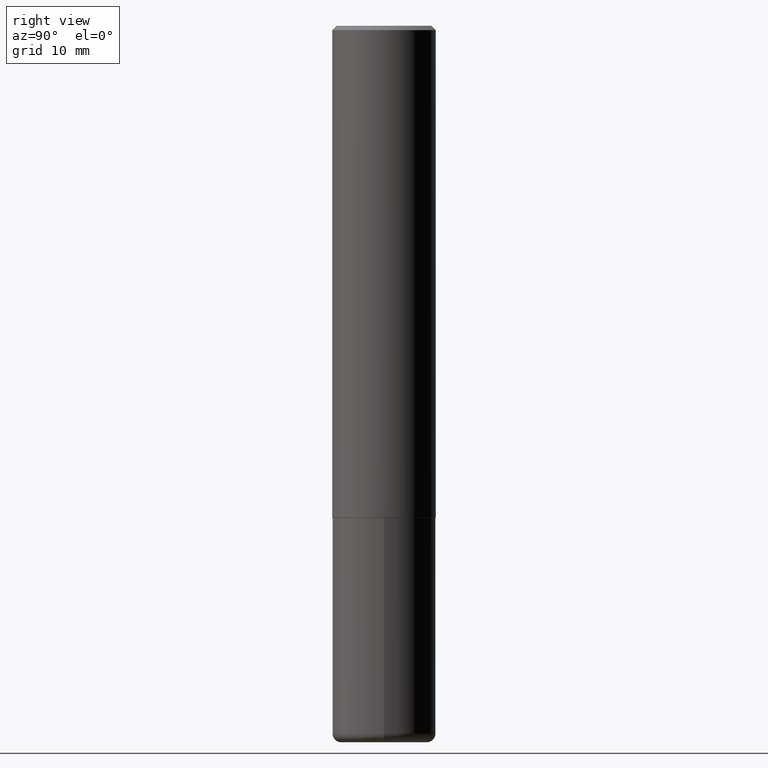
[diagram: clean part render]
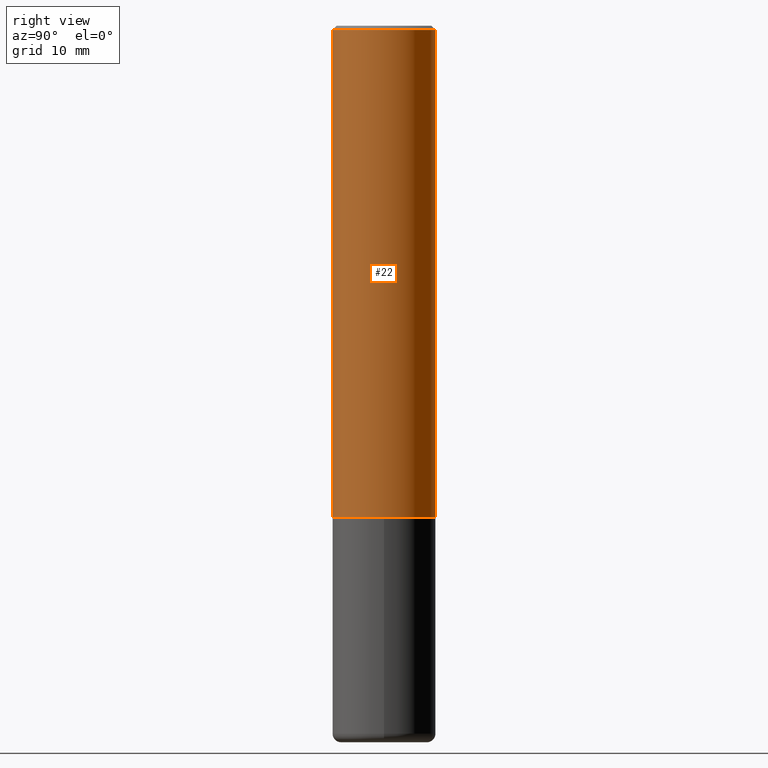
[diagram: same view with one face highlighted and labeled with its STEP entity id]
A machine part, right view. The second image highlights one B-rep face of the part: STEP entity #22.
In plain terms, the highlighted cylindrical surface (partial cylindrical patch) has radius 5.9995 mm, axis along (-0, 0, 1).
Its self-contained STEP definition (entity closure, byte-faithful):
#2 = EDGE_CURVE ( 'NONE', #218, #236, #267, .T. ) ;
#3 = CARTESIAN_POINT ( 'NONE',  ( -1.649375784469497117E-15, -0.2362000000000001598, 8.247714392355702416E-16 ) ) ;
#22 = ADVANCED_FACE ( 'NONE', ( #228 ), #194, .T. ) ;
#26 = DIRECTION ( 'NONE',  ( -2.445221809746292518E-29, 3.491835051801734308E-15, 1.000000000000000000 ) ) ;
#27 = LINE ( 'NONE', #163, #112 ) ;
#35 = DIRECTION ( 'NONE',  ( -2.445221809746292518E-29, 3.491835051801734702E-15, 1.000000000000000000 ) ) ;
#36 = ORIENTED_EDGE ( 'NONE', *, *, #125, .F. ) ;
#56 = EDGE_CURVE ( 'NONE', #303, #388, #88, .T. ) ;
#64 = CARTESIAN_POINT ( 'NONE',  ( 4.890443619492597157E-31, -6.983670103603485970E-17, -0.02000000000000005246 ) ) ;
#66 = CARTESIAN_POINT ( 'NONE',  ( -1.649375784469443080E-15, -0.2362000000000080979, -2.243099999999999206 ) ) ;
#79 = EDGE_CURVE ( 'NONE', #236, #388, #27, .T. ) ;
#88 = CIRCLE ( 'NONE', #413, 0.2362000000000000766 ) ;
#97 = AXIS2_PLACEMENT_3D ( 'NONE', #411, #104, #356 ) ;
#104 = DIRECTION ( 'NONE',  ( -2.445221809746292518E-29, 3.491835051801734308E-15, 1.000000000000000000 ) ) ;
#112 = VECTOR ( 'NONE', #265, 39.37007874015748143 ) ;
#117 = ORIENTED_EDGE ( 'NONE', *, *, #2, .T. ) ;
#125 = EDGE_CURVE ( 'NONE', #218, #303, #390, .T. ) ;
#150 = CARTESIAN_POINT ( 'NONE',  ( 1.649375784469496920E-15, 0.2361999999999999933, -0.02000000000000087472 ) ) ;
#163 = CARTESIAN_POINT ( 'NONE',  ( 1.678301941865357577E-15, 0.2362000000000001598, -8.247714392355702416E-16 ) ) ;
#183 = CARTESIAN_POINT ( 'NONE',  ( -1.620449627073635473E-15, -0.2362000000000001321, -0.01999999999999922673 ) ) ;
#194 = CYLINDRICAL_SURFACE ( 'NONE', #97, 0.2362000000000001598 ) ;
#204 = AXIS2_PLACEMENT_3D ( 'NONE', #229, #225, #357 ) ;
#218 = VERTEX_POINT ( 'NONE', #66 ) ;
#225 = DIRECTION ( 'NONE',  ( -2.445221809746292518E-29, 3.491835051801734308E-15, 1.000000000000000000 ) ) ;
#228 = FACE_OUTER_BOUND ( 'NONE', #335, .T. ) ;
#229 = CARTESIAN_POINT ( 'NONE',  ( 5.484877041441908919E-29, -7.832535204696471708E-15, -2.243100000000000094 ) ) ;
#236 = VERTEX_POINT ( 'NONE', #361 ) ;
#246 = VECTOR ( 'NONE', #35, 39.37007874015748143 ) ;
#265 = DIRECTION ( 'NONE',  ( -2.445221809746292518E-29, 3.491835051801734702E-15, 1.000000000000000000 ) ) ;
#267 = CIRCLE ( 'NONE', #204, 0.2362000000000002709 ) ;
#303 = VERTEX_POINT ( 'NONE', #183 ) ;
#320 = DIRECTION ( 'NONE',  ( -6.982962677686265922E-15, -1.000000000000000000, 3.487819265831410167E-15 ) ) ;
#335 = EDGE_LOOP ( 'NONE', ( #117, #337, #379, #36 ) ) ;
#337 = ORIENTED_EDGE ( 'NONE', *, *, #79, .T. ) ;
#356 = DIRECTION ( 'NONE',  ( -6.982962677686265922E-15, -1.000000000000000000, 3.491835051801734308E-15 ) ) ;
#357 = DIRECTION ( 'NONE',  ( -6.982962677686265922E-15, -1.000000000000000000, 3.469747663417773058E-15 ) ) ;
#361 = CARTESIAN_POINT ( 'NONE',  ( 1.678301941865385779E-15, 0.2361999999999924715, -2.243100000000000982 ) ) ;
#379 = ORIENTED_EDGE ( 'NONE', *, *, #56, .F. ) ;
#388 = VERTEX_POINT ( 'NONE', #150 ) ;
#390 = LINE ( 'NONE', #3, #246 ) ;
#411 = CARTESIAN_POINT ( 'NONE',  ( 0.000000000000000000, 0.000000000000000000, 0.000000000000000000 ) ) ;
#413 = AXIS2_PLACEMENT_3D ( 'NONE', #64, #26, #320 ) ;